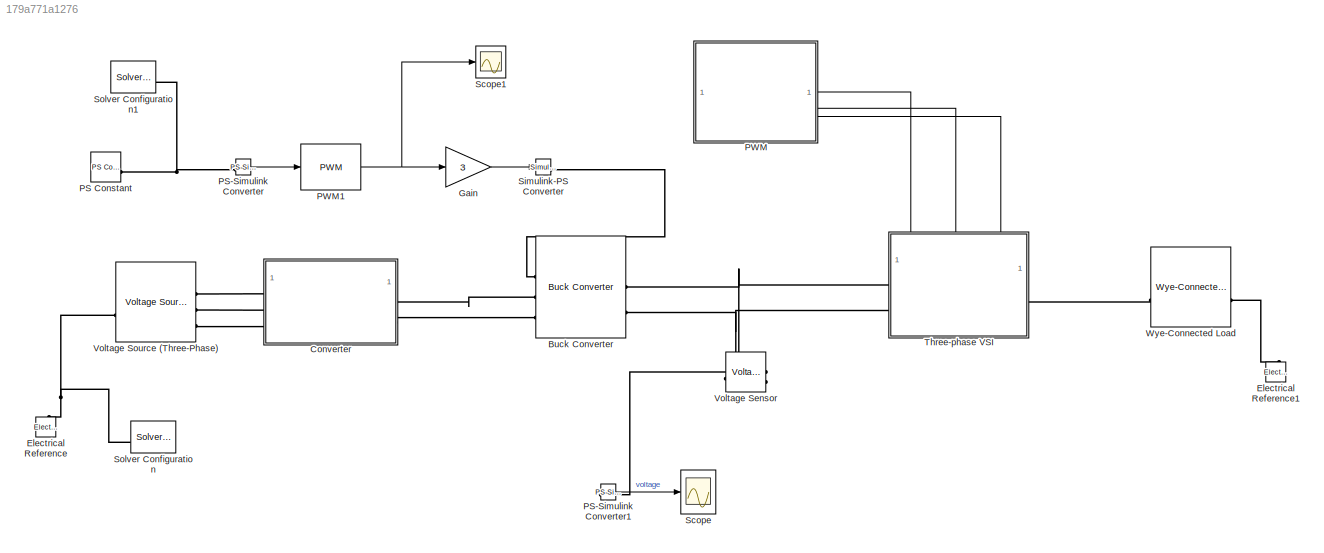
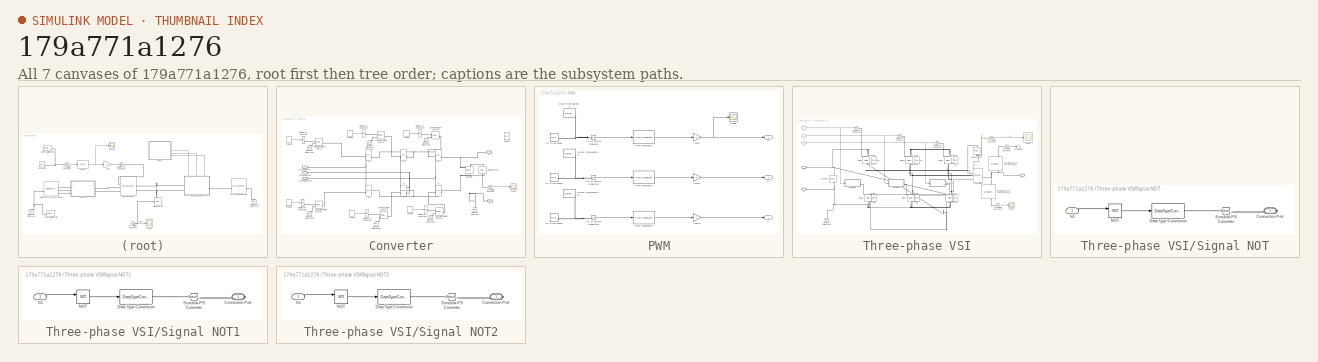
[diagram: thumbnail index - all 7 canvases of the model, root first then tree order]
MODEL slx_179a771a1276
KIND model
CONFIG AbsTol = auto
CONFIG EnableMultiTasking = off
CONFIG FixedStep = auto
CONFIG MaxStep = auto
CONFIG MinStep = auto
CONFIG RelTol = 1e-3
CONFIG SampleTimeConstraint = Unconstrained
CONFIG SolverName = VariableStepAuto
CONFIG StartTime = 0.0
CONFIG StopTime = 10/50
BLOCK [Reference] Buck Converter  REF=ee_lib/Semiconductors &
Converters/Converters/Buck Converter
  SourceBlock = ee_lib/Semiconductors &\nConverters/Converters/Buck Converter
  SourceType = Buck Converter
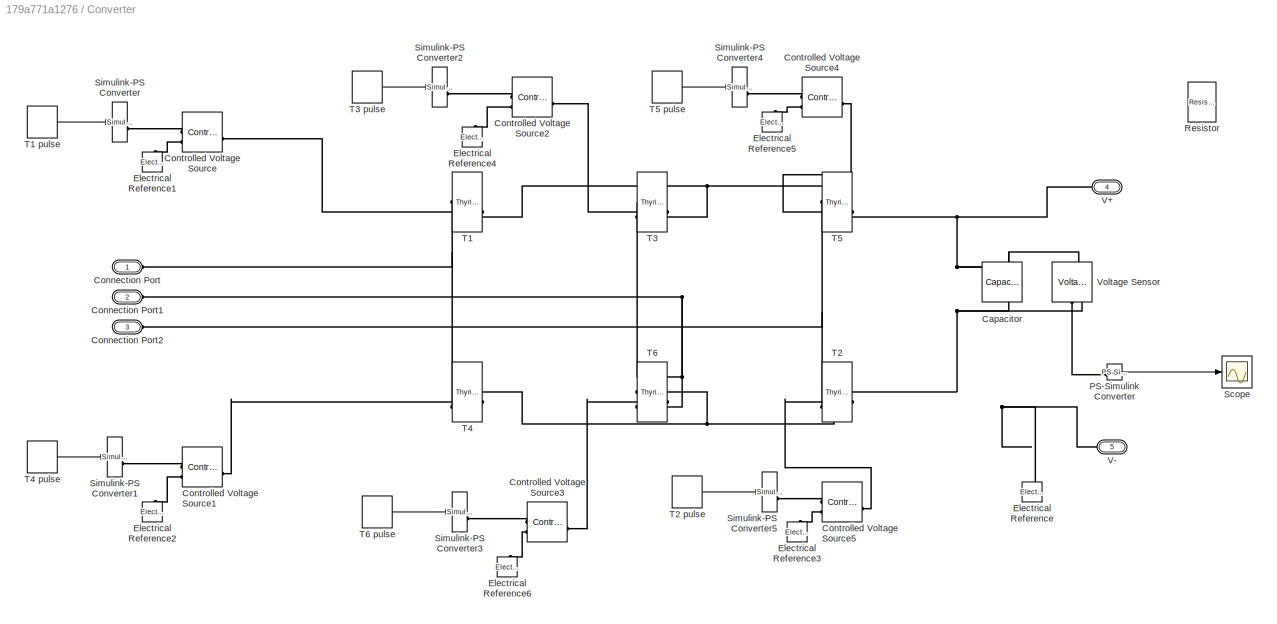
BLOCK [SubSystem] Converter
BLOCK [Reference] Converter/Capacitor  REF=fl_lib/Electrical/Electrical Elements/Capacitor
  NameLocation = left
  SourceBlock = fl_lib/Electrical/Electrical Elements/Capacitor
  SourceType = Capacitor
BLOCK [PMIOPort] Converter/Connection Port
  Side = Left
BLOCK [PMIOPort] Converter/Connection Port1
  Port = 2
  Side = Left
BLOCK [PMIOPort] Converter/Connection Port2
  Port = 3
  Side = Left
BLOCK [Reference] Converter/Controlled Voltage Source  REF=fl_lib/Electrical/Electrical Sources/Controlled Voltage
Source
  SourceBlock = fl_lib/Electrical/Electrical Sources/Controlled Voltage\nSource
  SourceType = Controlled Voltage\nSource
BLOCK [Reference] Converter/Controlled Voltage Source1  REF=fl_lib/Electrical/Electrical Sources/Controlled Voltage
Source
  SourceBlock = fl_lib/Electrical/Electrical Sources/Controlled Voltage\nSource
  SourceType = Controlled Voltage\nSource
BLOCK [Reference] Converter/Controlled Voltage Source2  REF=fl_lib/Electrical/Electrical Sources/Controlled Voltage
Source
  SourceBlock = fl_lib/Electrical/Electrical Sources/Controlled Voltage\nSource
  SourceType = Controlled Voltage\nSource
BLOCK [Reference] Converter/Controlled Voltage Source3  REF=fl_lib/Electrical/Electrical Sources/Controlled Voltage
Source
  SourceBlock = fl_lib/Electrical/Electrical Sources/Controlled Voltage\nSource
  SourceType = Controlled Voltage\nSource
BLOCK [Reference] Converter/Controlled Voltage Source4  REF=fl_lib/Electrical/Electrical Sources/Controlled Voltage
Source
  SourceBlock = fl_lib/Electrical/Electrical Sources/Controlled Voltage\nSource
  SourceType = Controlled Voltage\nSource
BLOCK [Reference] Converter/Controlled Voltage Source5  REF=fl_lib/Electrical/Electrical Sources/Controlled Voltage
Source
  SourceBlock = fl_lib/Electrical/Electrical Sources/Controlled Voltage\nSource
  SourceType = Controlled Voltage\nSource
BLOCK [Reference] Converter/Electrical Reference  REF=fl_lib/Electrical/Electrical Elements/Electrical Reference
  NameLocation = right
  SourceBlock = fl_lib/Electrical/Electrical Elements/Electrical Reference
  SourceType = Electrical Reference
BLOCK [Reference] Converter/Electrical Reference1  REF=fl_lib/Electrical/Electrical Elements/Electrical Reference
  NameLocation = right
  SourceBlock = fl_lib/Electrical/Electrical Elements/Electrical Reference
  SourceType = Electrical Reference
BLOCK [Reference] Converter/Electrical Reference2  REF=fl_lib/Electrical/Electrical Elements/Electrical Reference
  NameLocation = right
  SourceBlock = fl_lib/Electrical/Electrical Elements/Electrical Reference
  SourceType = Electrical Reference
BLOCK [Reference] Converter/Electrical Reference3  REF=fl_lib/Electrical/Electrical Elements/Electrical Reference
  NameLocation = right
  SourceBlock = fl_lib/Electrical/Electrical Elements/Electrical Reference
  SourceType = Electrical Reference
BLOCK [Reference] Converter/Electrical Reference4  REF=fl_lib/Electrical/Electrical Elements/Electrical Reference
  NameLocation = right
  SourceBlock = fl_lib/Electrical/Electrical Elements/Electrical Reference
  SourceType = Electrical Reference
BLOCK [Reference] Converter/Electrical Reference5  REF=fl_lib/Electrical/Electrical Elements/Electrical Reference
  NameLocation = right
  SourceBlock = fl_lib/Electrical/Electrical Elements/Electrical Reference
  SourceType = Electrical Reference
BLOCK [Reference] Converter/Electrical Reference6  REF=fl_lib/Electrical/Electrical Elements/Electrical Reference
  NameLocation = right
  SourceBlock = fl_lib/Electrical/Electrical Elements/Electrical Reference
  SourceType = Electrical Reference
BLOCK [Reference] Converter/PS-Simulink Converter  REF=nesl_utility/PS-Simulink
Converter
  SourceBlock = nesl_utility/PS-Simulink\nConverter
  SourceType = PS-Simulink\nConverter
BLOCK [Reference] Converter/Resistor  REF=fl_lib/Electrical/Electrical Elements/Resistor
  NameLocation = left
  SourceBlock = fl_lib/Electrical/Electrical Elements/Resistor
  SourceType = Resistor
BLOCK [Scope] Converter/Scope
  Floating = off
  NumInputPorts = 1
  ScopeSpecificationString = Simulink.scopes.TimeScopeBlockCfg('CurrentConfiguration', extmgr.ConfigurationSet(extmgr.Configuration('Core','General UI',true),extmgr.Configuration('Core','Source UI',true),extmgr.Configuration('Sources','WiredSimulink',true,'DataLoggingVariableName','ScopeData1'),extmgr.Configuration('Visuals','Time Domain',true,'SerializedDisplays',{struct('MinYLimReal','-8.69731','MaxYLimReal','78.27581','YLa...<+1804ch>
BLOCK [Reference] Converter/Simulink-PS Converter  REF=nesl_utility/Simulink-PS
Converter
  SourceBlock = nesl_utility/Simulink-PS\nConverter
  SourceType = Simulink-PS\nConverter
BLOCK [Reference] Converter/Simulink-PS Converter1  REF=nesl_utility/Simulink-PS
Converter
  SourceBlock = nesl_utility/Simulink-PS\nConverter
  SourceType = Simulink-PS\nConverter
BLOCK [Reference] Converter/Simulink-PS Converter2  REF=nesl_utility/Simulink-PS
Converter
  SourceBlock = nesl_utility/Simulink-PS\nConverter
  SourceType = Simulink-PS\nConverter
BLOCK [Reference] Converter/Simulink-PS Converter3  REF=nesl_utility/Simulink-PS
Converter
  SourceBlock = nesl_utility/Simulink-PS\nConverter
  SourceType = Simulink-PS\nConverter
BLOCK [Reference] Converter/Simulink-PS Converter4  REF=nesl_utility/Simulink-PS
Converter
  SourceBlock = nesl_utility/Simulink-PS\nConverter
  SourceType = Simulink-PS\nConverter
BLOCK [Reference] Converter/Simulink-PS Converter5  REF=nesl_utility/Simulink-PS
Converter
  SourceBlock = nesl_utility/Simulink-PS\nConverter
  SourceType = Simulink-PS\nConverter
BLOCK [Reference] Converter/T1  REF=ee_lib/Semiconductors &
Converters/Thyristor
  SourceBlock = ee_lib/Semiconductors &\nConverters/Thyristor
  SourceType = Thyristor
BLOCK [DiscretePulseGenerator] Converter/T1 pulse
  Amplitude = 2
  Period = 1/freq
  PhaseDelay = 1/(12*freq)
  PulseType = Time based
  PulseWidth = 5
BLOCK [Reference] Converter/T2  REF=ee_lib/Semiconductors &
Converters/Thyristor
  SourceBlock = ee_lib/Semiconductors &\nConverters/Thyristor
  SourceType = Thyristor
BLOCK [DiscretePulseGenerator] Converter/T2 pulse
  Amplitude = 2
  Period = 1/freq
  PhaseDelay = 1/(4*freq)
  PulseType = Time based
  PulseWidth = 5
BLOCK [Reference] Converter/T3  REF=ee_lib/Semiconductors &
Converters/Thyristor
  SourceBlock = ee_lib/Semiconductors &\nConverters/Thyristor
  SourceType = Thyristor
BLOCK [DiscretePulseGenerator] Converter/T3 pulse
  Amplitude = 2
  Period = 1/freq
  PhaseDelay = 5/(12*freq)
  PulseType = Time based
  PulseWidth = 5
BLOCK [Reference] Converter/T4  REF=ee_lib/Semiconductors &
Converters/Thyristor
  SourceBlock = ee_lib/Semiconductors &\nConverters/Thyristor
  SourceType = Thyristor
BLOCK [DiscretePulseGenerator] Converter/T4 pulse
  Amplitude = 2
  Period = 1/freq
  PhaseDelay = 7/(12*freq)
  PulseType = Time based
  PulseWidth = 5
BLOCK [Reference] Converter/T5  REF=ee_lib/Semiconductors &
Converters/Thyristor
  SourceBlock = ee_lib/Semiconductors &\nConverters/Thyristor
  SourceType = Thyristor
BLOCK [DiscretePulseGenerator] Converter/T5 pulse
  Amplitude = 2
  Period = 1/freq
  PhaseDelay = 3/(4*freq)
  PulseType = Time based
  PulseWidth = 5
BLOCK [Reference] Converter/T6  REF=ee_lib/Semiconductors &
Converters/Thyristor
  SourceBlock = ee_lib/Semiconductors &\nConverters/Thyristor
  SourceType = Thyristor
BLOCK [DiscretePulseGenerator] Converter/T6 pulse
  Amplitude = 2
  Period = 1/freq
  PhaseDelay = 11/(12*freq)
  PulseType = Time based
  PulseWidth = 5
BLOCK [PMIOPort] Converter/V+
  Port = 4
  Side = Right
BLOCK [PMIOPort] Converter/V-
  Port = 5
  Side = Right
BLOCK [Reference] Converter/Voltage Sensor  REF=fl_lib/Electrical/Electrical Sensors/Voltage Sensor
  NameLocation = right
  SourceBlock = fl_lib/Electrical/Electrical Sensors/Voltage Sensor
  SourceType = Voltage Sensor
BLOCK [Reference] Electrical Reference  REF=fl_lib/Electrical/Electrical Elements/Electrical Reference
  NameLocation = right
  SourceBlock = fl_lib/Electrical/Electrical Elements/Electrical Reference
  SourceType = Electrical Reference
BLOCK [Reference] Electrical Reference1  REF=fl_lib/Electrical/Electrical Elements/Electrical Reference
  NameLocation = right
  SourceBlock = fl_lib/Electrical/Electrical Elements/Electrical Reference
  SourceType = Electrical Reference
BLOCK [Gain] Gain
  Gain = 3
BLOCK [Reference] PS Constant  REF=fl_lib/Physical Signals/Sources/PS Constant
  SourceBlock = fl_lib/Physical Signals/Sources/PS Constant
  SourceType = PS Constant
BLOCK [Reference] PS-Simulink Converter  REF=nesl_utility/PS-Simulink
Converter
  SourceBlock = nesl_utility/PS-Simulink\nConverter
  SourceType = PS-Simulink\nConverter
BLOCK [Reference] PS-Simulink Converter1  REF=nesl_utility/PS-Simulink
Converter
  SourceBlock = nesl_utility/PS-Simulink\nConverter
  SourceType = PS-Simulink\nConverter
BLOCK [SubSystem] PWM
BLOCK [Gain] PWM/Gain
  Gain = 5
BLOCK [Gain] PWM/Gain1
  Gain = 5
BLOCK [Gain] PWM/Gain2
  Gain = 5
BLOCK [Reference] PWM/PS Sine Wave  REF=fl_lib/Physical Signals/Sources/PS Sine Wave
  SourceBlock = fl_lib/Physical Signals/Sources/PS Sine Wave
  SourceType = PS Sine Wave
BLOCK [Reference] PWM/PS Sine Wave1  REF=fl_lib/Physical Signals/Sources/PS Sine Wave
  SourceBlock = fl_lib/Physical Signals/Sources/PS Sine Wave
  SourceType = PS Sine Wave
BLOCK [Reference] PWM/PS Sine Wave2  REF=fl_lib/Physical Signals/Sources/PS Sine Wave
  SourceBlock = fl_lib/Physical Signals/Sources/PS Sine Wave
  SourceType = PS Sine Wave
BLOCK [Reference] PWM/PS-Simulink Converter  REF=nesl_utility/PS-Simulink
Converter
  SourceBlock = nesl_utility/PS-Simulink\nConverter
  SourceType = PS-Simulink\nConverter
BLOCK [Reference] PWM/PS-Simulink Converter1  REF=nesl_utility/PS-Simulink
Converter
  SourceBlock = nesl_utility/PS-Simulink\nConverter
  SourceType = PS-Simulink\nConverter
BLOCK [Reference] PWM/PS-Simulink Converter2  REF=nesl_utility/PS-Simulink
Converter
  SourceBlock = nesl_utility/PS-Simulink\nConverter
  SourceType = PS-Simulink\nConverter
BLOCK [Reference] PWM/PWM Generator1  REF=eePwmGenerator/PWM Generator
  SourceBlock = eePwmGenerator/PWM Generator
  SourceType = PWM Generator
BLOCK [Reference] PWM/PWM Generator2  REF=eePwmGenerator/PWM Generator
  SourceBlock = eePwmGenerator/PWM Generator
  SourceType = PWM Generator
BLOCK [Reference] PWM/PWM Generator3  REF=eePwmGenerator/PWM Generator
  SourceBlock = eePwmGenerator/PWM Generator
  SourceType = PWM Generator
BLOCK [Scope] PWM/Scope
  Floating = off
  NumInputPorts = 1
  ScopeSpecificationString = Simulink.scopes.TimeScopeBlockCfg('CurrentConfiguration', extmgr.ConfigurationSet(extmgr.Configuration('Core','General UI',true),extmgr.Configuration('Core','Source UI',true),extmgr.Configuration('Sources','WiredSimulink',true,'DataLoggingVariableName','ScopeData2'),extmgr.Configuration('Visuals','Time Domain',true,'SerializedDisplays',{struct('MinYLimReal','-0.625','MaxYLimReal','5.625','YLabelRe...<+1469ch>
BLOCK [Reference] PWM/Solver Configuration  REF=nesl_utility/Solver
Configuration
  SourceBlock = nesl_utility/Solver\nConfiguration
  SourceType = Solver\nConfiguration
BLOCK [Reference] PWM/Solver Configuration1  REF=nesl_utility/Solver
Configuration
  SourceBlock = nesl_utility/Solver\nConfiguration
  SourceType = Solver\nConfiguration
BLOCK [Reference] PWM/Solver Configuration2  REF=nesl_utility/Solver
Configuration
  SourceBlock = nesl_utility/Solver\nConfiguration
  SourceType = Solver\nConfiguration
BLOCK [Outport] PWM/a
BLOCK [Outport] PWM/b
  Port = 2
BLOCK [Outport] PWM/c
  Port = 3
BLOCK [Reference] PWM1  REF=simulink/Discontinuities/PWM
  DisableCoverage = on
  SourceBlock = simulink/Discontinuities/PWM
  SourceType = PWM
BLOCK [Scope] Scope
  Floating = off
  NumInputPorts = 1
  ScopeSpecificationString = Simulink.scopes.TimeScopeBlockCfg('CurrentConfiguration', extmgr.ConfigurationSet(extmgr.Configuration('Core','General UI',true),extmgr.Configuration('Core','Source UI',true),extmgr.Configuration('Sources','WiredSimulink',true,'DataLoggingVariableName','ScopeData1'),extmgr.Configuration('Visuals','Time Domain',true,'SerializedDisplays',{struct('MinYLimReal','-2.7165','MaxYLimReal','24.4485','YLabe...<+1480ch>
BLOCK [Scope] Scope1
  Floating = off
  NumInputPorts = 1
  ScopeSpecificationString = Simulink.scopes.TimeScopeBlockCfg('CurrentConfiguration', extmgr.ConfigurationSet(extmgr.Configuration('Core','General UI',true),extmgr.Configuration('Core','Source UI',true),extmgr.Configuration('Sources','WiredSimulink',true,'DataLoggingVariableName','ScopeData2'),extmgr.Configuration('Visuals','Time Domain',true,'SerializedDisplays',{struct('MinYLimReal','-0.125','MaxYLimReal','1.125','YLabelRe...<+1469ch>
BLOCK [Reference] Simulink-PS Converter  REF=nesl_utility/Simulink-PS
Converter
  SourceBlock = nesl_utility/Simulink-PS\nConverter
  SourceType = Simulink-PS\nConverter
BLOCK [Reference] Solver Configuration  REF=nesl_utility/Solver
Configuration
  SourceBlock = nesl_utility/Solver\nConfiguration
  SourceType = Solver\nConfiguration
BLOCK [Reference] Solver Configuration1  REF=nesl_utility/Solver
Configuration
  SourceBlock = nesl_utility/Solver\nConfiguration
  SourceType = Solver\nConfiguration
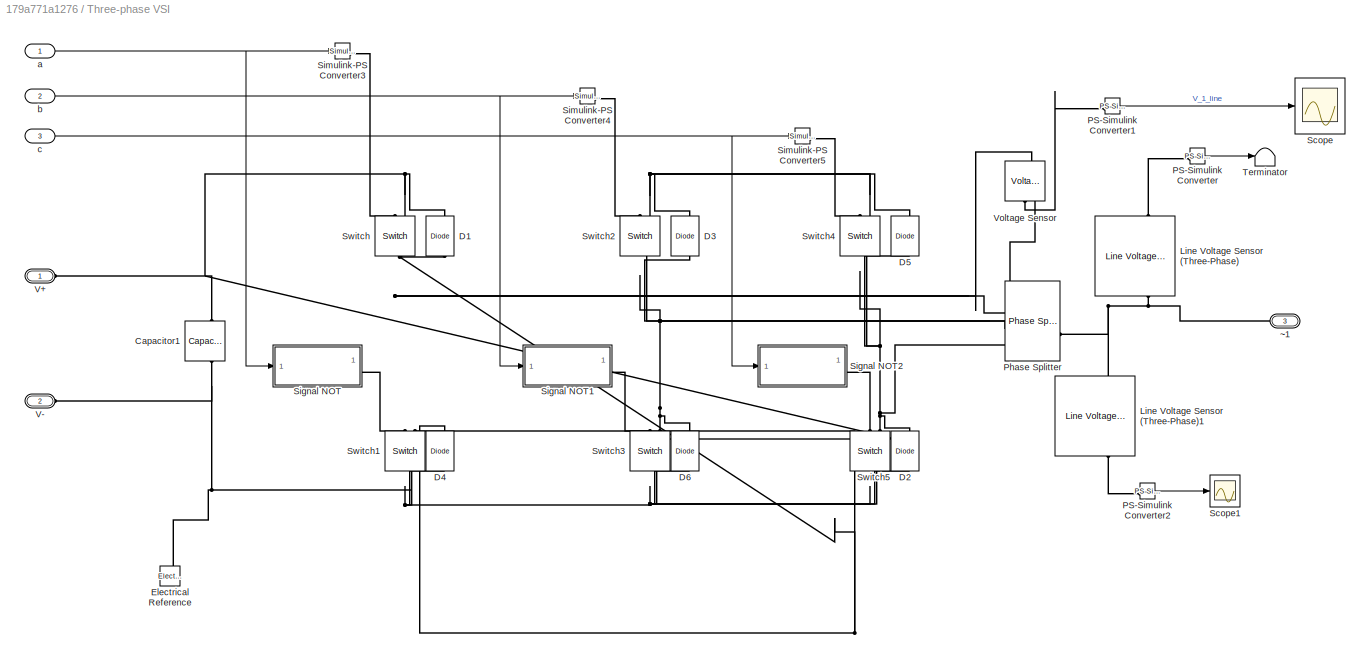
BLOCK [SubSystem] Three-phase VSI
  PortSchema = {"entries":[{"content":{"sides":[{"content":{"connectorIds":["LConn1","LConn2"]},"type":"ConnectorPlacement.EquallySpacedRectSide","uuid":"2b5e637c-93e3-4064-8bf6-4f52f0e07da4"},{"content":{"connectorIds":["RConn1"],"side":"RIGHT"},"type":"ConnectorPlacement.EquallySpacedRectSide","uuid":"63a19c73-cdb8-4eaa-8504-93f2b55e949d"},{"content":{"connectorIds":["In1","In2","In3"],"side":"TOP"},"type":"Co...<+271ch>
BLOCK [Reference] Three-phase VSI/Capacitor1  REF=fl_lib/Electrical/Electrical Elements/Capacitor
  NameLocation = left
  SourceBlock = fl_lib/Electrical/Electrical Elements/Capacitor
  SourceType = Capacitor
BLOCK [Reference] Three-phase VSI/D1  REF=fl_lib/Electrical/Electrical Elements/Diode
  NameLocation = right
  SourceBlock = fl_lib/Electrical/Electrical Elements/Diode
  SourceType = Diode
BLOCK [Reference] Three-phase VSI/D2  REF=fl_lib/Electrical/Electrical Elements/Diode
  NameLocation = right
  SourceBlock = fl_lib/Electrical/Electrical Elements/Diode
  SourceType = Diode
BLOCK [Reference] Three-phase VSI/D3  REF=fl_lib/Electrical/Electrical Elements/Diode
  NameLocation = right
  SourceBlock = fl_lib/Electrical/Electrical Elements/Diode
  SourceType = Diode
BLOCK [Reference] Three-phase VSI/D4  REF=fl_lib/Electrical/Electrical Elements/Diode
  NameLocation = right
  SourceBlock = fl_lib/Electrical/Electrical Elements/Diode
  SourceType = Diode
BLOCK [Reference] Three-phase VSI/D5  REF=fl_lib/Electrical/Electrical Elements/Diode
  NameLocation = right
  SourceBlock = fl_lib/Electrical/Electrical Elements/Diode
  SourceType = Diode
BLOCK [Reference] Three-phase VSI/D6  REF=fl_lib/Electrical/Electrical Elements/Diode
  NameLocation = right
  SourceBlock = fl_lib/Electrical/Electrical Elements/Diode
  SourceType = Diode
BLOCK [Reference] Three-phase VSI/Electrical Reference  REF=fl_lib/Electrical/Electrical Elements/Electrical Reference
  NameLocation = right
  SourceBlock = fl_lib/Electrical/Electrical Elements/Electrical Reference
  SourceType = Electrical Reference
BLOCK [Reference] Three-phase VSI/Line Voltage Sensor (Three-Phase)  REF=ee_lib/Sensors &
Transducers/Line Voltage Sensor
(Three-Phase)
  NameLocation = right
  SourceBlock = ee_lib/Sensors &\nTransducers/Line Voltage Sensor\n(Three-Phase)
  SourceType = Line Voltage Sensor\n(Three-Phase)
BLOCK [Reference] Three-phase VSI/Line Voltage Sensor (Three-Phase)1  REF=ee_lib/Sensors &
Transducers/Line Voltage Sensor
(Three-Phase)
  NameLocation = right
  SourceBlock = ee_lib/Sensors &\nTransducers/Line Voltage Sensor\n(Three-Phase)
  SourceType = Line Voltage Sensor\n(Three-Phase)
BLOCK [Reference] Three-phase VSI/PS-Simulink Converter  REF=nesl_utility/PS-Simulink
Converter
  SourceBlock = nesl_utility/PS-Simulink\nConverter
  SourceType = PS-Simulink\nConverter
BLOCK [Reference] Three-phase VSI/PS-Simulink Converter1  REF=nesl_utility/PS-Simulink
Converter
  SourceBlock = nesl_utility/PS-Simulink\nConverter
  SourceType = PS-Simulink\nConverter
BLOCK [Reference] Three-phase VSI/PS-Simulink Converter2  REF=nesl_utility/PS-Simulink
Converter
  SourceBlock = nesl_utility/PS-Simulink\nConverter
  SourceType = PS-Simulink\nConverter
BLOCK [Reference] Three-phase VSI/Phase Splitter  REF=ee_lib/Connectors &
References/Phase Splitter
  SourceBlock = ee_lib/Connectors &\nReferences/Phase Splitter
  SourceType = Phase Splitter
BLOCK [Scope] Three-phase VSI/Scope
  Floating = off
  NumInputPorts = 1
  ScopeSpecificationString = Simulink.scopes.TimeScopeBlockCfg('CurrentConfiguration', extmgr.ConfigurationSet(extmgr.Configuration('Core','General UI',true),extmgr.Configuration('Core','Source UI',true),extmgr.Configuration('Sources','WiredSimulink',true,'DataLoggingVariableName','ScopeData1'),extmgr.Configuration('Visuals','Time Domain',true,'SerializedDisplays',{struct('MinYLimReal','-32.45878','MaxYLimReal','31.87094','YL...<+1508ch>
BLOCK [Scope] Three-phase VSI/Scope1
  Floating = off
  NumInputPorts = 1
  ScopeSpecificationString = Simulink.scopes.TimeScopeBlockCfg('CurrentConfiguration', extmgr.ConfigurationSet(extmgr.Configuration('Core','General UI',true),extmgr.Configuration('Core','Source UI',true),extmgr.Configuration('Sources','WiredSimulink',true,'DataLoggingVariableName','ScopeData1'),extmgr.Configuration('Visuals','Time Domain',true,'SerializedDisplays',{struct('MinYLimReal','-80.86096','MaxYLimReal','80.86099','YL...<+1559ch>
BLOCK [SubSystem] Three-phase VSI/Signal NOT
BLOCK [PMIOPort] Three-phase VSI/Signal NOT/Connection Port
  Side = Right
BLOCK [DataTypeConversion] Three-phase VSI/Signal NOT/Data Type Conversion
  OutDataTypeStr = double
  RndMeth = Floor
  SaturateOnIntegerOverflow = off
BLOCK [Inport] Three-phase VSI/Signal NOT/In1
BLOCK [Logic] Three-phase VSI/Signal NOT/NOT
  AllPortsSameDT = off
  IconShape = distinctive
  Operator = NOT
  OutDataTypeStr = boolean
BLOCK [Reference] Three-phase VSI/Signal NOT/Simulink-PS Converter  REF=nesl_utility/Simulink-PS
Converter
  SourceBlock = nesl_utility/Simulink-PS\nConverter
  SourceType = Simulink-PS\nConverter
BLOCK [SubSystem] Three-phase VSI/Signal NOT1
BLOCK [PMIOPort] Three-phase VSI/Signal NOT1/Connection Port
  Side = Right
BLOCK [DataTypeConversion] Three-phase VSI/Signal NOT1/Data Type Conversion
  OutDataTypeStr = double
  RndMeth = Floor
  SaturateOnIntegerOverflow = off
BLOCK [Inport] Three-phase VSI/Signal NOT1/In1
BLOCK [Logic] Three-phase VSI/Signal NOT1/NOT
  AllPortsSameDT = off
  IconShape = distinctive
  Operator = NOT
  OutDataTypeStr = boolean
BLOCK [Reference] Three-phase VSI/Signal NOT1/Simulink-PS Converter  REF=nesl_utility/Simulink-PS
Converter
  SourceBlock = nesl_utility/Simulink-PS\nConverter
  SourceType = Simulink-PS\nConverter
BLOCK [SubSystem] Three-phase VSI/Signal NOT2
BLOCK [PMIOPort] Three-phase VSI/Signal NOT2/Connection Port
  Side = Right
BLOCK [DataTypeConversion] Three-phase VSI/Signal NOT2/Data Type Conversion
  OutDataTypeStr = double
  RndMeth = Floor
  SaturateOnIntegerOverflow = off
BLOCK [Inport] Three-phase VSI/Signal NOT2/In1
BLOCK [Logic] Three-phase VSI/Signal NOT2/NOT
  AllPortsSameDT = off
  IconShape = distinctive
  Operator = NOT
  OutDataTypeStr = boolean
BLOCK [Reference] Three-phase VSI/Signal NOT2/Simulink-PS Converter  REF=nesl_utility/Simulink-PS
Converter
  SourceBlock = nesl_utility/Simulink-PS\nConverter
  SourceType = Simulink-PS\nConverter
BLOCK [Reference] Three-phase VSI/Simulink-PS Converter3  REF=nesl_utility/Simulink-PS
Converter
  SourceBlock = nesl_utility/Simulink-PS\nConverter
  SourceType = Simulink-PS\nConverter
BLOCK [Reference] Three-phase VSI/Simulink-PS Converter4  REF=nesl_utility/Simulink-PS
Converter
  SourceBlock = nesl_utility/Simulink-PS\nConverter
  SourceType = Simulink-PS\nConverter
BLOCK [Reference] Three-phase VSI/Simulink-PS Converter5  REF=nesl_utility/Simulink-PS
Converter
  SourceBlock = nesl_utility/Simulink-PS\nConverter
  SourceType = Simulink-PS\nConverter
BLOCK [Reference] Three-phase VSI/Switch  REF=fl_lib/Electrical/Electrical Elements/Switch
  NameLocation = left
  SourceBlock = fl_lib/Electrical/Electrical Elements/Switch
  SourceType = Switch
BLOCK [Reference] Three-phase VSI/Switch1  REF=fl_lib/Electrical/Electrical Elements/Switch
  NameLocation = left
  SourceBlock = fl_lib/Electrical/Electrical Elements/Switch
  SourceType = Switch
BLOCK [Reference] Three-phase VSI/Switch2  REF=fl_lib/Electrical/Electrical Elements/Switch
  NameLocation = left
  SourceBlock = fl_lib/Electrical/Electrical Elements/Switch
  SourceType = Switch
BLOCK [Reference] Three-phase VSI/Switch3  REF=fl_lib/Electrical/Electrical Elements/Switch
  NameLocation = left
  SourceBlock = fl_lib/Electrical/Electrical Elements/Switch
  SourceType = Switch
BLOCK [Reference] Three-phase VSI/Switch4  REF=fl_lib/Electrical/Electrical Elements/Switch
  NameLocation = left
  SourceBlock = fl_lib/Electrical/Electrical Elements/Switch
  SourceType = Switch
BLOCK [Reference] Three-phase VSI/Switch5  REF=fl_lib/Electrical/Electrical Elements/Switch
  NameLocation = left
  SourceBlock = fl_lib/Electrical/Electrical Elements/Switch
  SourceType = Switch
BLOCK [Terminator] Three-phase VSI/Terminator
BLOCK [PMIOPort] Three-phase VSI/V+
  Side = Left
BLOCK [PMIOPort] Three-phase VSI/V-
  Port = 2
  Side = Left
BLOCK [Reference] Three-phase VSI/Voltage Sensor  REF=fl_lib/Electrical/Electrical Sensors/Voltage Sensor
  NameLocation = right
  SourceBlock = fl_lib/Electrical/Electrical Sensors/Voltage Sensor
  SourceType = Voltage Sensor
BLOCK [Inport] Three-phase VSI/a
BLOCK [Inport] Three-phase VSI/b
  Port = 2
BLOCK [Inport] Three-phase VSI/c
  Port = 3
BLOCK [PMIOPort] Three-phase VSI/~1
  Port = 3
  Side = Right
BLOCK [Reference] Voltage Sensor  REF=fl_lib/Electrical/Electrical Sensors/Voltage Sensor
  SourceBlock = fl_lib/Electrical/Electrical Sensors/Voltage Sensor
  SourceType = Voltage Sensor
BLOCK [Reference] Voltage Source (Three-Phase)  REF=ee_lib/Sources/Voltage
Source
(Three-Phase)
  SourceBlock = ee_lib/Sources/Voltage\nSource\n(Three-Phase)
  SourceType = Voltage\nSource\n(Three-Phase)
BLOCK [Reference] Wye-Connected Load  REF=ee_lib/Passive/RLC Assemblies/Wye-Connected Load
  SourceBlock = ee_lib/Passive/RLC Assemblies/Wye-Connected Load
  SourceType = Wye-Connected Load
LINE Converter/PS-Simulink Converter:1 -> Converter/Scope:1
LINE Converter/T1 pulse:1 -> Converter/Simulink-PS Converter:1
LINE Converter/T2 pulse:1 -> Converter/Simulink-PS Converter5:1
LINE Converter/T3 pulse:1 -> Converter/Simulink-PS Converter2:1
LINE Converter/T4 pulse:1 -> Converter/Simulink-PS Converter1:1
LINE Converter/T5 pulse:1 -> Converter/Simulink-PS Converter4:1
LINE Converter/T6 pulse:1 -> Converter/Simulink-PS Converter3:1
LINE Gain:1 -> Simulink-PS Converter:1
LINE PS-Simulink Converter1:1 -> Scope:1
LINE PS-Simulink Converter:1 -> PWM1:1
LINE PWM/Gain1:1 -> PWM/b:1
LINE PWM/Gain2:1 -> PWM/c:1
NET PWM/Gain:1 -> PWM/Scope:1, PWM/a:1
LINE PWM/PS-Simulink Converter1:1 -> PWM/PWM Generator2:1
LINE PWM/PS-Simulink Converter2:1 -> PWM/PWM Generator3:1
LINE PWM/PS-Simulink Converter:1 -> PWM/PWM Generator1:1
LINE PWM/PWM Generator1:1 -> PWM/Gain:1
LINE PWM/PWM Generator2:1 -> PWM/Gain1:1
LINE PWM/PWM Generator3:1 -> PWM/Gain2:1
NET PWM1:1 -> Gain:1, Scope1:1
LINE PWM:1 -> Three-phase VSI:1
LINE PWM:2 -> Three-phase VSI:2
LINE PWM:3 -> Three-phase VSI:3
LINE Three-phase VSI/PS-Simulink Converter1:1 -> Three-phase VSI/Scope:1
LINE Three-phase VSI/PS-Simulink Converter2:1 -> Three-phase VSI/Scope1:1
LINE Three-phase VSI/PS-Simulink Converter:1 -> Three-phase VSI/Terminator:1
LINE Three-phase VSI/Signal NOT/Data Type Conversion:1 -> Three-phase VSI/Signal NOT/Simulink-PS Converter:1
LINE Three-phase VSI/Signal NOT/In1:1 -> Three-phase VSI/Signal NOT/NOT:1
LINE Three-phase VSI/Signal NOT/NOT:1 -> Three-phase VSI/Signal NOT/Data Type Conversion:1
LINE Three-phase VSI/Signal NOT1/Data Type Conversion:1 -> Three-phase VSI/Signal NOT1/Simulink-PS Converter:1
LINE Three-phase VSI/Signal NOT1/In1:1 -> Three-phase VSI/Signal NOT1/NOT:1
LINE Three-phase VSI/Signal NOT1/NOT:1 -> Three-phase VSI/Signal NOT1/Data Type Conversion:1
LINE Three-phase VSI/Signal NOT2/Data Type Conversion:1 -> Three-phase VSI/Signal NOT2/Simulink-PS Converter:1
LINE Three-phase VSI/Signal NOT2/In1:1 -> Three-phase VSI/Signal NOT2/NOT:1
LINE Three-phase VSI/Signal NOT2/NOT:1 -> Three-phase VSI/Signal NOT2/Data Type Conversion:1
NET Three-phase VSI/a:1 -> Three-phase VSI/Signal NOT:1, Three-phase VSI/Simulink-PS Converter3:1
NET Three-phase VSI/b:1 -> Three-phase VSI/Signal NOT1:1, Three-phase VSI/Simulink-PS Converter4:1
NET Three-phase VSI/c:1 -> Three-phase VSI/Signal NOT2:1, Three-phase VSI/Simulink-PS Converter5:1
PLINE Buck Converter:LConn1 -- Simulink-PS Converter:RConn1
PLINE Buck Converter:LConn2 -- Converter:RConn1
PLINE Buck Converter:LConn3 -- Converter:RConn2
PNET net1: Buck Converter:RConn1 -- Three-phase VSI:LConn1 -- Voltage Sensor:LConn1
PNET net2: Buck Converter:RConn2 -- Three-phase VSI:LConn2 -- Voltage Sensor:RConn2
PNET net3: Converter/Capacitor:LConn1 -- Converter/T1:RConn2 -- Converter/T3:RConn2 -- Converter/T5:RConn2 -- Converter/V+:RConn1 -- Converter/Voltage Sensor:LConn1
PNET net4: Converter/Capacitor:RConn1 -- Converter/Electrical Reference:LConn1 -- Converter/T2:RConn1 -- Converter/T4:RConn1 -- Converter/T6:RConn1 -- Converter/V-:RConn1 -- Converter/Voltage Sensor:RConn2
PNET net5: Converter/Connection Port1:RConn1 -- Converter/T3:RConn1 -- Converter/T6:RConn2
PNET net6: Converter/Connection Port2:RConn1 -- Converter/T2:RConn2 -- Converter/T5:RConn1
PNET net7: Converter/Connection Port:RConn1 -- Converter/T1:RConn1 -- Converter/T4:RConn2
PLINE Converter/Controlled Voltage Source1:LConn1 -- Converter/T4:LConn1
PLINE Converter/Controlled Voltage Source1:RConn1 -- Converter/Simulink-PS Converter1:RConn1
PLINE Converter/Controlled Voltage Source1:RConn2 -- Converter/Electrical Reference2:LConn1
PLINE Converter/Controlled Voltage Source2:LConn1 -- Converter/T3:LConn1
PLINE Converter/Controlled Voltage Source2:RConn1 -- Converter/Simulink-PS Converter2:RConn1
PLINE Converter/Controlled Voltage Source2:RConn2 -- Converter/Electrical Reference4:LConn1
PLINE Converter/Controlled Voltage Source3:LConn1 -- Converter/T6:LConn1
PLINE Converter/Controlled Voltage Source3:RConn1 -- Converter/Simulink-PS Converter3:RConn1
PLINE Converter/Controlled Voltage Source3:RConn2 -- Converter/Electrical Reference6:LConn1
PLINE Converter/Controlled Voltage Source4:LConn1 -- Converter/T5:LConn1
PLINE Converter/Controlled Voltage Source4:RConn1 -- Converter/Simulink-PS Converter4:RConn1
PLINE Converter/Controlled Voltage Source4:RConn2 -- Converter/Electrical Reference5:LConn1
PLINE Converter/Controlled Voltage Source5:LConn1 -- Converter/T2:LConn1
PLINE Converter/Controlled Voltage Source5:RConn1 -- Converter/Simulink-PS Converter5:RConn1
PLINE Converter/Controlled Voltage Source5:RConn2 -- Converter/Electrical Reference3:LConn1
PLINE Converter/Controlled Voltage Source:LConn1 -- Converter/T1:LConn1
PLINE Converter/Controlled Voltage Source:RConn1 -- Converter/Simulink-PS Converter:RConn1
PLINE Converter/Controlled Voltage Source:RConn2 -- Converter/Electrical Reference1:LConn1
PLINE Converter/PS-Simulink Converter:LConn1 -- Converter/Voltage Sensor:RConn1
PLINE Converter:LConn1 -- Voltage Source (Three-Phase):RConn1
PLINE Converter:LConn2 -- Voltage Source (Three-Phase):RConn2
PLINE Converter:LConn3 -- Voltage Source (Three-Phase):RConn3
PLINE Electrical Reference1:LConn1 -- Wye-Connected Load:RConn1
PNET net8: Electrical Reference:LConn1 -- Solver Configuration:RConn1 -- Voltage Source (Three-Phase):LConn1
PNET net9: PS Constant:RConn1 -- PS-Simulink Converter:LConn1 -- Solver Configuration1:RConn1
PLINE PS-Simulink Converter1:LConn1 -- Voltage Sensor:RConn1
PNET net10: PWM/PS Sine Wave1:RConn1 -- PWM/PS-Simulink Converter1:LConn1 -- PWM/Solver Configuration1:RConn1
PNET net11: PWM/PS Sine Wave2:RConn1 -- PWM/PS-Simulink Converter2:LConn1 -- PWM/Solver Configuration2:RConn1
PNET net12: PWM/PS Sine Wave:RConn1 -- PWM/PS-Simulink Converter:LConn1 -- PWM/Solver Configuration:RConn1
PNET net13: Three-phase VSI/Capacitor1:LConn1 -- Three-phase VSI/D1:RConn1 -- Three-phase VSI/D3:RConn1 -- Three-phase VSI/D5:RConn1 -- Three-phase VSI/Switch2:RConn2 -- Three-phase VSI/Switch4:RConn2 -- Three-phase VSI/Switch:RConn2 -- Three-phase VSI/V+:RConn1
PNET net14: Three-phase VSI/Capacitor1:RConn1 -- Three-phase VSI/D2:LConn1 -- Three-phase VSI/D4:LConn1 -- Three-phase VSI/D6:LConn1 -- Three-phase VSI/Electrical Reference:LConn1 -- Three-phase VSI/Switch1:LConn1 -- Three-phase VSI/Switch3:LConn1 -- Three-phase VSI/Switch5:LConn1 -- Three-phase VSI/V-:RConn1
PNET net15: Three-phase VSI/D1:LConn1 -- Three-phase VSI/D4:RConn1 -- Three-phase VSI/Phase Splitter:RConn1 -- Three-phase VSI/Switch1:RConn2 -- Three-phase VSI/Switch:LConn1 -- Three-phase VSI/Voltage Sensor:LConn1
PNET net16: Three-phase VSI/D2:RConn1 -- Three-phase VSI/D5:LConn1 -- Three-phase VSI/Phase Splitter:RConn3 -- Three-phase VSI/Switch4:LConn1 -- Three-phase VSI/Switch5:RConn2
PNET net17: Three-phase VSI/D3:LConn1 -- Three-phase VSI/D6:RConn1 -- Three-phase VSI/Phase Splitter:RConn2 -- Three-phase VSI/Switch2:LConn1 -- Three-phase VSI/Switch3:RConn2 -- Three-phase VSI/Voltage Sensor:RConn2
PNET net18: Three-phase VSI/Line Voltage Sensor (Three-Phase)1:LConn1 -- Three-phase VSI/Line Voltage Sensor (Three-Phase):LConn1 -- Three-phase VSI/Phase Splitter:LConn1 -- Three-phase VSI/~1:RConn1
PLINE Three-phase VSI/Line Voltage Sensor (Three-Phase)1:RConn1 -- Three-phase VSI/PS-Simulink Converter2:LConn1
PLINE Three-phase VSI/Line Voltage Sensor (Three-Phase):RConn1 -- Three-phase VSI/PS-Simulink Converter:LConn1
PLINE Three-phase VSI/PS-Simulink Converter1:LConn1 -- Three-phase VSI/Voltage Sensor:RConn1
PLINE Three-phase VSI/Signal NOT/Connection Port:RConn1 -- Three-phase VSI/Signal NOT/Simulink-PS Converter:RConn1
PLINE Three-phase VSI/Signal NOT1/Connection Port:RConn1 -- Three-phase VSI/Signal NOT1/Simulink-PS Converter:RConn1
PLINE Three-phase VSI/Signal NOT1:RConn1 -- Three-phase VSI/Switch3:RConn1
PLINE Three-phase VSI/Signal NOT2/Connection Port:RConn1 -- Three-phase VSI/Signal NOT2/Simulink-PS Converter:RConn1
PLINE Three-phase VSI/Signal NOT2:RConn1 -- Three-phase VSI/Switch5:RConn1
PLINE Three-phase VSI/Signal NOT:RConn1 -- Three-phase VSI/Switch1:RConn1
PLINE Three-phase VSI/Simulink-PS Converter3:RConn1 -- Three-phase VSI/Switch:RConn1
PLINE Three-phase VSI/Simulink-PS Converter4:RConn1 -- Three-phase VSI/Switch2:RConn1
PLINE Three-phase VSI/Simulink-PS Converter5:RConn1 -- Three-phase VSI/Switch4:RConn1
PLINE Three-phase VSI:RConn1 -- Wye-Connected Load:LConn1
note: NET lines group one-source signal fan-out (src -> all destinations, sorted); 1:1 wires keep LINE; PNET lines group multi-terminal physical nets as a canonical sorted terminal list (undirected conserving connections); 2-terminal nets keep the pairwise PLINE form
